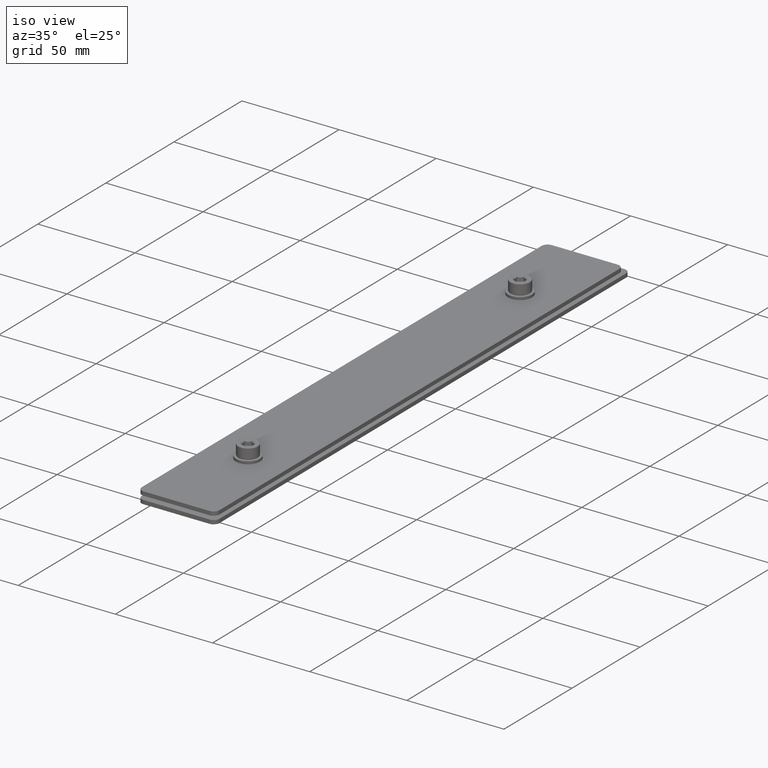
[diagram: clean part render]
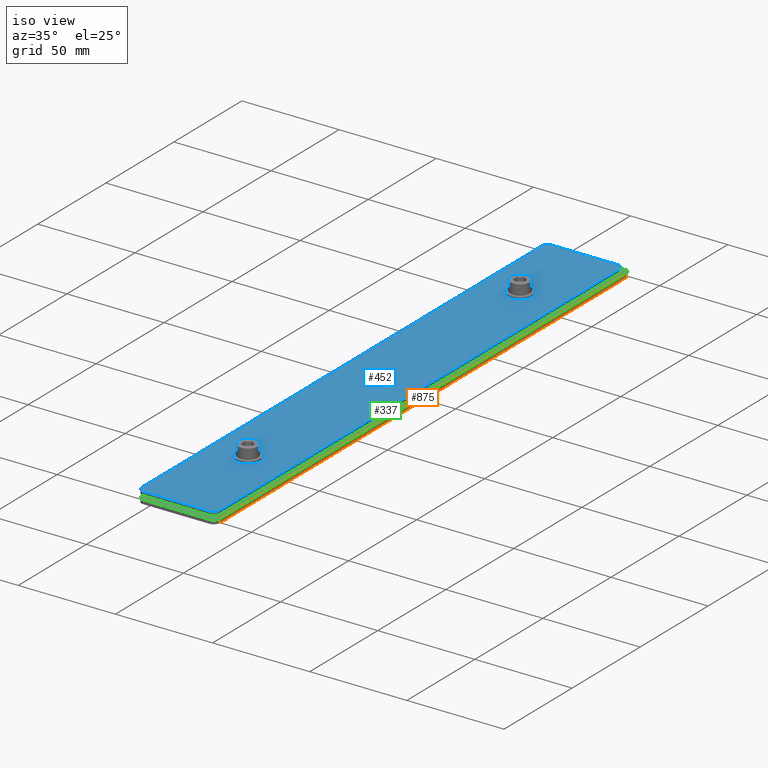
[diagram: same view with three faces highlighted in distinct colors, each labeled with its STEP entity id]
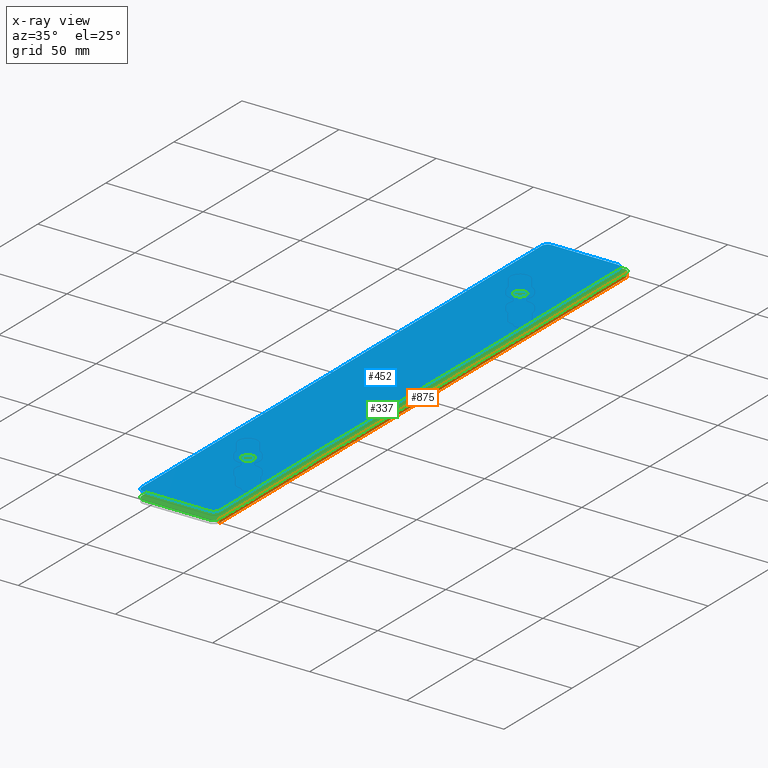
[diagram: x-ray of the same camera — body ghosted, the three highlighted faces saturated]
A machine part, iso view with three faces highlighted in distinct colors.
The next image is the same camera in x-ray (body ghosted, the three faces saturated) — at least one of them is partly hidden behind the body in this view.
Their STEP definitions:

[orange] entity #875 — the highlighted planar face has unit normal (1, 0, -0).
#132 = VERTEX_POINT ( 'NONE', #303 ) ;
#174 = LINE ( 'NONE', #3687, #2243 ) ;
#214 = DIRECTION ( 'NONE',  ( 0.000000000000000000, -1.000000000000000000, 0.000000000000000000 ) ) ;
#215 = EDGE_CURVE ( 'NONE', #917, #132, #3167, .T. ) ;
#303 = CARTESIAN_POINT ( 'NONE',  ( -6.614153669204370090E-14, -123.4999999999999432, -8.673617379884035472E-16 ) ) ;
#314 = CARTESIAN_POINT ( 'NONE',  ( -6.625255899450621655E-14, 175.5000000000000000, -2.000000000000000888 ) ) ;
#484 = PLANE ( 'NONE',  #3347 ) ;
#599 = EDGE_CURVE ( 'NONE', #2683, #917, #174, .T. ) ;
#724 = DIRECTION ( 'NONE',  ( 5.551115123125782702E-17, 0.000000000000000000, 1.000000000000000000 ) ) ;
#875 = ADVANCED_FACE ( 'NONE', ( #2524 ), #484, .T. ) ;
#917 = VERTEX_POINT ( 'NONE', #2261 ) ;
#1253 = DIRECTION ( 'NONE',  ( 0.000000000000000000, -1.000000000000000000, 0.000000000000000000 ) ) ;
#1601 = ORIENTED_EDGE ( 'NONE', *, *, #1962, .T. ) ;
#1607 = CARTESIAN_POINT ( 'NONE',  ( -6.625255899450621655E-14, -123.4999999999998863, -2.000000000000000888 ) ) ;
#1624 = ORIENTED_EDGE ( 'NONE', *, *, #215, .F. ) ;
#1671 = DIRECTION ( 'NONE',  ( 5.551115123125782702E-17, 0.000000000000000000, 1.000000000000000000 ) ) ;
#1764 = ORIENTED_EDGE ( 'NONE', *, *, #3746, .T. ) ;
#1834 = VERTEX_POINT ( 'NONE', #3434 ) ;
#1925 = VECTOR ( 'NONE', #724, 1000.000000000000000 ) ;
#1962 = EDGE_CURVE ( 'NONE', #1834, #132, #3585, .T. ) ;
#2070 = LINE ( 'NONE', #3709, #2301 ) ;
#2243 = VECTOR ( 'NONE', #214, 1000.000000000000000 ) ;
#2261 = CARTESIAN_POINT ( 'NONE',  ( -6.625255899450621655E-14, -123.4999999999999432, -2.000000000000000888 ) ) ;
#2301 = VECTOR ( 'NONE', #3762, 1000.000000000000000 ) ;
#2314 = ORIENTED_EDGE ( 'NONE', *, *, #599, .F. ) ;
#2372 = VECTOR ( 'NONE', #1253, 1000.000000000000000 ) ;
#2377 = CARTESIAN_POINT ( 'NONE',  ( -6.614153669204370090E-14, 178.4000000000000057, -8.673617379884035472E-16 ) ) ;
#2383 = EDGE_LOOP ( 'NONE', ( #1601, #1624, #2314, #1764 ) ) ;
#2524 = FACE_OUTER_BOUND ( 'NONE', #2383, .T. ) ;
#2683 = VERTEX_POINT ( 'NONE', #314 ) ;
#2810 = DIRECTION ( 'NONE',  ( 1.000000000000000000, 0.000000000000000000, -5.551115123125782702E-17 ) ) ;
#3167 = LINE ( 'NONE', #1607, #1925 ) ;
#3347 = AXIS2_PLACEMENT_3D ( 'NONE', #3414, #2810, #1671 ) ;
#3414 = CARTESIAN_POINT ( 'NONE',  ( -6.625255899450621655E-14, 178.4000000000000057, -2.000000000000000888 ) ) ;
#3434 = CARTESIAN_POINT ( 'NONE',  ( -6.614153669204370090E-14, 175.5000000000000000, -8.673617379884035472E-16 ) ) ;
#3585 = LINE ( 'NONE', #2377, #2372 ) ;
#3687 = CARTESIAN_POINT ( 'NONE',  ( -6.625255899450621655E-14, 178.4000000000000057, -2.000000000000000888 ) ) ;
#3709 = CARTESIAN_POINT ( 'NONE',  ( -6.625255899450621655E-14, 175.5000000000000284, -2.000000000000000888 ) ) ;
#3746 = EDGE_CURVE ( 'NONE', #2683, #1834, #2070, .T. ) ;
#3762 = DIRECTION ( 'NONE',  ( 5.551115123125782702E-17, 0.000000000000000000, 1.000000000000000000 ) ) ;

[blue] entity #452 — the highlighted planar face has unit normal (-0, 0, -1).
#6 = LINE ( 'NONE', #1718, #2482 ) ;
#9 = EDGE_CURVE ( 'NONE', #1392, #1392, #575, .T. ) ;
#26 = CIRCLE ( 'NONE', #2185, 3.000000000000000000 ) ;
#54 = CARTESIAN_POINT ( 'NONE',  ( -40.00000000000000000, -123.5000000000000000, 4.000000000000000000 ) ) ;
#87 = FACE_BOUND ( 'NONE', #3511, .T. ) ;
#118 = VERTEX_POINT ( 'NONE', #3266 ) ;
#143 = EDGE_LOOP ( 'NONE', ( #2514 ) ) ;
#146 = CARTESIAN_POINT ( 'NONE',  ( -2.999999999999967581, 173.5000000000000000, 3.999999999999999112 ) ) ;
#154 = VERTEX_POINT ( 'NONE', #54 ) ;
#196 = CARTESIAN_POINT ( 'NONE',  ( -23.30000000000000071, -74.00000000000001421, 3.999999999999999112 ) ) ;
#207 = DIRECTION ( 'NONE',  ( -3.813944420627395867E-17, 1.379055869979733316E-18, -1.000000000000000000 ) ) ;
#243 = VERTEX_POINT ( 'NONE', #146 ) ;
#274 = CARTESIAN_POINT ( 'NONE',  ( 3.215882421470084170E-14, 170.4999999999999716, 3.999999999999999112 ) ) ;
#317 = VERTEX_POINT ( 'NONE', #1486 ) ;
#332 = CIRCLE ( 'NONE', #2247, 3.300000000000000711 ) ;
#427 = FACE_OUTER_BOUND ( 'NONE', #3199, .T. ) ;
#452 = ADVANCED_FACE ( 'NONE', ( #87, #2190, #427 ), #1241, .F. ) ;
#514 = AXIS2_PLACEMENT_3D ( 'NONE', #2152, #1856, #2419 ) ;
#517 = CIRCLE ( 'NONE', #950, 3.000000000000000000 ) ;
#521 = ORIENTED_EDGE ( 'NONE', *, *, #2590, .F. ) ;
#530 = EDGE_CURVE ( 'NONE', #317, #1105, #3713, .T. ) ;
#575 = CIRCLE ( 'NONE', #2420, 3.300000000000000711 ) ;
#578 = CARTESIAN_POINT ( 'NONE',  ( 3.252606517456513302E-14, 173.4000000000000057, 3.999999999999999112 ) ) ;
#582 = VECTOR ( 'NONE', #2462, 1000.000000000000000 ) ;
#680 = DIRECTION ( 'NONE',  ( -3.813944420627395867E-17, 1.379055869979733316E-18, -1.000000000000000000 ) ) ;
#697 = CARTESIAN_POINT ( 'NONE',  ( -2.999999999999968026, 170.4999999999999716, 3.999999999999999112 ) ) ;
#701 = CIRCLE ( 'NONE', #1369, 3.000000000000002665 ) ;
#831 = EDGE_CURVE ( 'NONE', #243, #2599, #517, .T. ) ;
#927 = EDGE_CURVE ( 'NONE', #118, #3646, #26, .T. ) ;
#929 = EDGE_CURVE ( 'NONE', #1218, #1218, #332, .T. ) ;
#931 = CARTESIAN_POINT ( 'NONE',  ( -37.00000000000000000, -123.5000000000000000, 4.000000000000000000 ) ) ;
#950 = AXIS2_PLACEMENT_3D ( 'NONE', #697, #680, #1563 ) ;
#993 = ORIENTED_EDGE ( 'NONE', *, *, #9, .T. ) ;
#1042 = DIRECTION ( 'NONE',  ( -3.813944420627395867E-17, 1.379055869979733316E-18, -1.000000000000000000 ) ) ;
#1105 = VERTEX_POINT ( 'NONE', #1401 ) ;
#1164 = DIRECTION ( 'NONE',  ( 1.000000000000000000, -1.266348137463069179E-16, -3.813944420627395867E-17 ) ) ;
#1218 = VERTEX_POINT ( 'NONE', #3573 ) ;
#1241 = PLANE ( 'NONE',  #514 ) ;
#1266 = CARTESIAN_POINT ( 'NONE',  ( -5.451715467952313707E-15, -126.5000000000000000, 3.999999999999999112 ) ) ;
#1345 = CARTESIAN_POINT ( 'NONE',  ( -20.00000000000001066, 126.0000000000000000, 4.000000000000000000 ) ) ;
#1369 = AXIS2_PLACEMENT_3D ( 'NONE', #931, #2132, #1508 ) ;
#1392 = VERTEX_POINT ( 'NONE', #196 ) ;
#1401 = CARTESIAN_POINT ( 'NONE',  ( -36.99999999999996447, 173.5000000000000284, 4.000000000000000888 ) ) ;
#1429 = VECTOR ( 'NONE', #2670, 1000.000000000000000 ) ;
#1484 = LINE ( 'NONE', #1266, #3597 ) ;
#1486 = CARTESIAN_POINT ( 'NONE',  ( -39.99999999999996447, 170.5000000000000000, 4.000000000000000888 ) ) ;
#1508 = DIRECTION ( 'NONE',  ( -1.000000000000000000, 0.000000000000000000, 0.000000000000000000 ) ) ;
#1529 = DIRECTION ( 'NONE',  ( -3.813944420627395867E-17, 1.379055869979733316E-18, -1.000000000000000000 ) ) ;
#1563 = DIRECTION ( 'NONE',  ( -1.000000000000000000, 0.000000000000000000, 0.000000000000000000 ) ) ;
#1599 = CARTESIAN_POINT ( 'NONE',  ( -36.99999999999996447, 170.5000000000000000, 4.000000000000000888 ) ) ;
#1636 = DIRECTION ( 'NONE',  ( -3.813944420627395867E-17, 1.379055869979733316E-18, -1.000000000000000000 ) ) ;
#1664 = ORIENTED_EDGE ( 'NONE', *, *, #2686, .F. ) ;
#1718 = CARTESIAN_POINT ( 'NONE',  ( 3.253872865593976245E-14, 173.5000000000000000, 3.999999999999999112 ) ) ;
#1733 = CARTESIAN_POINT ( 'NONE',  ( -37.00000000000000000, -126.5000000000000000, 4.000000000000000000 ) ) ;
#1856 = DIRECTION ( 'NONE',  ( -3.813944420627395867E-17, 1.379055869979733316E-18, -1.000000000000000000 ) ) ;
#1995 = ORIENTED_EDGE ( 'NONE', *, *, #2365, .F. ) ;
#2099 = LINE ( 'NONE', #578, #1429 ) ;
#2132 = DIRECTION ( 'NONE',  ( -3.813944420627395867E-17, 1.379055869979733316E-18, -1.000000000000000000 ) ) ;
#2152 = CARTESIAN_POINT ( 'NONE',  ( 3.252606517456513302E-14, 173.4000000000000057, 3.999999999999999112 ) ) ;
#2185 = AXIS2_PLACEMENT_3D ( 'NONE', #3682, #1636, #3433 ) ;
#2190 = FACE_BOUND ( 'NONE', #143, .T. ) ;
#2247 = AXIS2_PLACEMENT_3D ( 'NONE', #1345, #1042, #2560 ) ;
#2363 = AXIS2_PLACEMENT_3D ( 'NONE', #1599, #1529, #2444 ) ;
#2365 = EDGE_CURVE ( 'NONE', #2599, #118, #2099, .T. ) ;
#2419 = DIRECTION ( 'NONE',  ( 1.000000000000000000, -1.266348137463069179E-16, -3.813944420627395867E-17 ) ) ;
#2420 = AXIS2_PLACEMENT_3D ( 'NONE', #2843, #207, #2559 ) ;
#2444 = DIRECTION ( 'NONE',  ( -1.000000000000000000, 0.000000000000000000, 0.000000000000000000 ) ) ;
#2462 = DIRECTION ( 'NONE',  ( 1.266348137463069179E-16, 1.000000000000000000, 1.379055869979728501E-18 ) ) ;
#2482 = VECTOR ( 'NONE', #1164, 1000.000000000000000 ) ;
#2498 = CARTESIAN_POINT ( 'NONE',  ( -39.99999999999996447, 173.4000000000000057, 4.000000000000000888 ) ) ;
#2514 = ORIENTED_EDGE ( 'NONE', *, *, #929, .T. ) ;
#2547 = ORIENTED_EDGE ( 'NONE', *, *, #2736, .F. ) ;
#2559 = DIRECTION ( 'NONE',  ( -1.000000000000000000, 0.000000000000000000, 0.000000000000000000 ) ) ;
#2560 = DIRECTION ( 'NONE',  ( -1.000000000000000000, 0.000000000000000000, 0.000000000000000000 ) ) ;
#2590 = EDGE_CURVE ( 'NONE', #1105, #243, #6, .T. ) ;
#2599 = VERTEX_POINT ( 'NONE', #274 ) ;
#2639 = ORIENTED_EDGE ( 'NONE', *, *, #831, .F. ) ;
#2670 = DIRECTION ( 'NONE',  ( -1.266348137463069179E-16, -1.000000000000000000, -1.379055869979728501E-18 ) ) ;
#2686 = EDGE_CURVE ( 'NONE', #3009, #154, #701, .T. ) ;
#2736 = EDGE_CURVE ( 'NONE', #3646, #3009, #1484, .T. ) ;
#2799 = LINE ( 'NONE', #2498, #582 ) ;
#2843 = CARTESIAN_POINT ( 'NONE',  ( -20.00000000000000000, -74.00000000000001421, 3.999999999999999112 ) ) ;
#3004 = ORIENTED_EDGE ( 'NONE', *, *, #3595, .F. ) ;
#3009 = VERTEX_POINT ( 'NONE', #1733 ) ;
#3032 = CARTESIAN_POINT ( 'NONE',  ( -3.000000000000005773, -126.5000000000000000, 3.999999999999999112 ) ) ;
#3199 = EDGE_LOOP ( 'NONE', ( #3697, #3004, #1664, #2547, #3342, #1995, #2639, #521 ) ) ;
#3266 = CARTESIAN_POINT ( 'NONE',  ( -5.071811026713391375E-15, -123.5000000000000000, 3.999999999999999112 ) ) ;
#3342 = ORIENTED_EDGE ( 'NONE', *, *, #927, .F. ) ;
#3433 = DIRECTION ( 'NONE',  ( -1.000000000000000000, 0.000000000000000000, 0.000000000000000000 ) ) ;
#3511 = EDGE_LOOP ( 'NONE', ( #993 ) ) ;
#3573 = CARTESIAN_POINT ( 'NONE',  ( -23.30000000000001137, 126.0000000000000000, 4.000000000000000000 ) ) ;
#3595 = EDGE_CURVE ( 'NONE', #154, #317, #2799, .T. ) ;
#3597 = VECTOR ( 'NONE', #3615, 1000.000000000000000 ) ;
#3615 = DIRECTION ( 'NONE',  ( -1.000000000000000000, 1.266348137463069179E-16, 3.813944420627395867E-17 ) ) ;
#3646 = VERTEX_POINT ( 'NONE', #3032 ) ;
#3682 = CARTESIAN_POINT ( 'NONE',  ( -3.000000000000005329, -123.5000000000000000, 3.999999999999999112 ) ) ;
#3697 = ORIENTED_EDGE ( 'NONE', *, *, #530, .F. ) ;
#3713 = CIRCLE ( 'NONE', #2363, 3.000000000000002665 ) ;

[green] entity #337 — the highlighted planar face has unit normal (-0, 0, -1).
#30 = FACE_OUTER_BOUND ( 'NONE', #2711, .T. ) ;
#47 = DIRECTION ( 'NONE',  ( 1.000000000000000000, -0.000000000000000000, -5.551115123125782702E-17 ) ) ;
#132 = VERTEX_POINT ( 'NONE', #303 ) ;
#218 = ORIENTED_EDGE ( 'NONE', *, *, #1540, .F. ) ;
#283 = VERTEX_POINT ( 'NONE', #3349 ) ;
#296 = ORIENTED_EDGE ( 'NONE', *, *, #3047, .T. ) ;
#303 = CARTESIAN_POINT ( 'NONE',  ( -6.614153669204370090E-14, -123.4999999999999432, -8.673617379884035472E-16 ) ) ;
#331 = CIRCLE ( 'NONE', #3536, 2.999999999999999556 ) ;
#337 = ADVANCED_FACE ( 'NONE', ( #30, #1469, #2971 ), #2661, .F. ) ;
#381 = DIRECTION ( 'NONE',  ( -5.551115123125782702E-17, -0.000000000000000000, -1.000000000000000000 ) ) ;
#414 = CARTESIAN_POINT ( 'NONE',  ( -3.000000000000066613, -123.5000000000000000, -8.673617379884035472E-16 ) ) ;
#454 = VECTOR ( 'NONE', #870, 1000.000000000000000 ) ;
#458 = EDGE_CURVE ( 'NONE', #3744, #1834, #331, .T. ) ;
#567 = LINE ( 'NONE', #812, #1566 ) ;
#569 = ORIENTED_EDGE ( 'NONE', *, *, #3728, .F. ) ;
#570 = CARTESIAN_POINT ( 'NONE',  ( -6.614153669204370090E-14, 178.4000000000000057, -8.673617379884035472E-16 ) ) ;
#618 = DIRECTION ( 'NONE',  ( -1.000000000000000000, 0.000000000000000000, 5.551115123125782702E-17 ) ) ;
#678 = VERTEX_POINT ( 'NONE', #1405 ) ;
#780 = CARTESIAN_POINT ( 'NONE',  ( -3.000000000000066613, 178.5000000000000000, -8.673617379884035472E-16 ) ) ;
#812 = CARTESIAN_POINT ( 'NONE',  ( -6.614153669204370090E-14, -126.5000000000000000, -8.673617379884035472E-16 ) ) ;
#820 = AXIS2_PLACEMENT_3D ( 'NONE', #414, #1300, #2477 ) ;
#856 = DIRECTION ( 'NONE',  ( -5.551115123125782702E-17, 0.000000000000000000, -1.000000000000000000 ) ) ;
#865 = DIRECTION ( 'NONE',  ( -5.551115123125782702E-17, -0.000000000000000000, -1.000000000000000000 ) ) ;
#870 = DIRECTION ( 'NONE',  ( 1.000000000000000000, -0.000000000000000000, -5.551115123125782702E-17 ) ) ;
#925 = ORIENTED_EDGE ( 'NONE', *, *, #458, .F. ) ;
#933 = DIRECTION ( 'NONE',  ( -5.551115123125782702E-17, -0.000000000000000000, -1.000000000000000000 ) ) ;
#945 = DIRECTION ( 'NONE',  ( -1.000000000000000000, 0.000000000000000000, 5.551115123125782702E-17 ) ) ;
#1040 = ORIENTED_EDGE ( 'NONE', *, *, #1962, .F. ) ;
#1047 = ORIENTED_EDGE ( 'NONE', *, *, #3274, .F. ) ;
#1084 = ORIENTED_EDGE ( 'NONE', *, *, #1963, .T. ) ;
#1111 = EDGE_CURVE ( 'NONE', #283, #3076, #2666, .T. ) ;
#1199 = AXIS2_PLACEMENT_3D ( 'NONE', #2409, #1541, #618 ) ;
#1214 = DIRECTION ( 'NONE',  ( -1.000000000000000000, 0.000000000000000000, 5.551115123125782702E-17 ) ) ;
#1253 = DIRECTION ( 'NONE',  ( 0.000000000000000000, -1.000000000000000000, 0.000000000000000000 ) ) ;
#1281 = EDGE_CURVE ( 'NONE', #2459, #283, #3073, .T. ) ;
#1300 = DIRECTION ( 'NONE',  ( -5.551115123125782702E-17, -0.000000000000000000, -1.000000000000000000 ) ) ;
#1360 = VERTEX_POINT ( 'NONE', #3077 ) ;
#1377 = CIRCLE ( 'NONE', #1199, 3.300000000000000711 ) ;
#1405 = CARTESIAN_POINT ( 'NONE',  ( -3.000000000000066613, -126.5000000000000000, -8.673617379884035472E-16 ) ) ;
#1469 = FACE_BOUND ( 'NONE', #2360, .T. ) ;
#1494 = CIRCLE ( 'NONE', #820, 2.999999999999999556 ) ;
#1515 = EDGE_CURVE ( 'NONE', #3076, #3744, #1760, .T. ) ;
#1540 = EDGE_CURVE ( 'NONE', #678, #2140, #567, .T. ) ;
#1541 = DIRECTION ( 'NONE',  ( -5.551115123125782702E-17, -0.000000000000000000, -1.000000000000000000 ) ) ;
#1565 = AXIS2_PLACEMENT_3D ( 'NONE', #2946, #381, #945 ) ;
#1566 = VECTOR ( 'NONE', #1993, 1000.000000000000000 ) ;
#1760 = LINE ( 'NONE', #3456, #454 ) ;
#1782 = ORIENTED_EDGE ( 'NONE', *, *, #1515, .F. ) ;
#1787 = CARTESIAN_POINT ( 'NONE',  ( -37.00000000000007105, -123.5000000000000000, 8.673617379884035472E-16 ) ) ;
#1833 = CARTESIAN_POINT ( 'NONE',  ( -37.00000000000007105, 178.5000000000000000, 8.673617379884035472E-16 ) ) ;
#1834 = VERTEX_POINT ( 'NONE', #3434 ) ;
#1938 = CARTESIAN_POINT ( 'NONE',  ( -40.00000000000007105, -123.5000000000000000, 1.734723475976807094E-15 ) ) ;
#1953 = EDGE_LOOP ( 'NONE', ( #296 ) ) ;
#1962 = EDGE_CURVE ( 'NONE', #1834, #132, #3585, .T. ) ;
#1963 = EDGE_CURVE ( 'NONE', #3271, #3271, #1377, .T. ) ;
#1993 = DIRECTION ( 'NONE',  ( -1.000000000000000000, 0.000000000000000000, 5.551115123125782702E-17 ) ) ;
#2140 = VERTEX_POINT ( 'NONE', #3020 ) ;
#2234 = DIRECTION ( 'NONE',  ( -1.000000000000000000, 0.000000000000000000, 5.551115123125782702E-17 ) ) ;
#2360 = EDGE_LOOP ( 'NONE', ( #1084 ) ) ;
#2372 = VECTOR ( 'NONE', #1253, 1000.000000000000000 ) ;
#2377 = CARTESIAN_POINT ( 'NONE',  ( -6.614153669204370090E-14, 178.4000000000000057, -8.673617379884035472E-16 ) ) ;
#2409 = CARTESIAN_POINT ( 'NONE',  ( -20.00000000000001421, 126.0000000000000000, 0.000000000000000000 ) ) ;
#2459 = VERTEX_POINT ( 'NONE', #1938 ) ;
#2477 = DIRECTION ( 'NONE',  ( -1.000000000000000000, 0.000000000000000000, 5.551115123125782086E-17 ) ) ;
#2500 = DIRECTION ( 'NONE',  ( -5.551115123125782702E-17, -0.000000000000000000, -1.000000000000000000 ) ) ;
#2502 = DIRECTION ( 'NONE',  ( -0.000000000000000000, 1.000000000000000000, -0.000000000000000000 ) ) ;
#2661 = PLANE ( 'NONE',  #3279 ) ;
#2666 = CIRCLE ( 'NONE', #3284, 3.000000000000002665 ) ;
#2711 = EDGE_LOOP ( 'NONE', ( #3195, #3605, #1047, #218, #569, #1040, #925, #1782 ) ) ;
#2723 = AXIS2_PLACEMENT_3D ( 'NONE', #1787, #2500, #2234 ) ;
#2821 = CARTESIAN_POINT ( 'NONE',  ( -40.00000000000007105, 178.4000000000000057, 1.734723475976807094E-15 ) ) ;
#2946 = CARTESIAN_POINT ( 'NONE',  ( -20.00000000000001421, -74.00000000000001421, 0.000000000000000000 ) ) ;
#2965 = CARTESIAN_POINT ( 'NONE',  ( -23.30000000000001492, 126.0000000000000000, 1.831867990631508686E-16 ) ) ;
#2971 = FACE_BOUND ( 'NONE', #1953, .T. ) ;
#3020 = CARTESIAN_POINT ( 'NONE',  ( -37.00000000000007105, -126.5000000000000000, 8.673617379884035472E-16 ) ) ;
#3047 = EDGE_CURVE ( 'NONE', #1360, #1360, #3715, .T. ) ;
#3050 = DIRECTION ( 'NONE',  ( -1.000000000000000000, 0.000000000000000000, 5.551115123125782086E-17 ) ) ;
#3073 = LINE ( 'NONE', #2821, #3161 ) ;
#3076 = VERTEX_POINT ( 'NONE', #1833 ) ;
#3077 = CARTESIAN_POINT ( 'NONE',  ( -23.30000000000001492, -74.00000000000001421, 1.831867990631508686E-16 ) ) ;
#3161 = VECTOR ( 'NONE', #2502, 1000.000000000000000 ) ;
#3195 = ORIENTED_EDGE ( 'NONE', *, *, #1111, .F. ) ;
#3271 = VERTEX_POINT ( 'NONE', #2965 ) ;
#3274 = EDGE_CURVE ( 'NONE', #2140, #2459, #3652, .T. ) ;
#3279 = AXIS2_PLACEMENT_3D ( 'NONE', #570, #856, #47 ) ;
#3284 = AXIS2_PLACEMENT_3D ( 'NONE', #3506, #865, #1214 ) ;
#3320 = CARTESIAN_POINT ( 'NONE',  ( -3.000000000000066613, 175.5000000000000000, -8.673617379884035472E-16 ) ) ;
#3349 = CARTESIAN_POINT ( 'NONE',  ( -40.00000000000007105, 175.5000000000000000, 1.734723475976807094E-15 ) ) ;
#3434 = CARTESIAN_POINT ( 'NONE',  ( -6.614153669204370090E-14, 175.5000000000000000, -8.673617379884035472E-16 ) ) ;
#3456 = CARTESIAN_POINT ( 'NONE',  ( -6.614153669204370090E-14, 178.5000000000000000, -8.673617379884035472E-16 ) ) ;
#3506 = CARTESIAN_POINT ( 'NONE',  ( -37.00000000000007105, 175.5000000000000000, 8.673617379884035472E-16 ) ) ;
#3536 = AXIS2_PLACEMENT_3D ( 'NONE', #3320, #933, #3050 ) ;
#3585 = LINE ( 'NONE', #2377, #2372 ) ;
#3605 = ORIENTED_EDGE ( 'NONE', *, *, #1281, .F. ) ;
#3652 = CIRCLE ( 'NONE', #2723, 3.000000000000002665 ) ;
#3715 = CIRCLE ( 'NONE', #1565, 3.300000000000000711 ) ;
#3728 = EDGE_CURVE ( 'NONE', #132, #678, #1494, .T. ) ;
#3744 = VERTEX_POINT ( 'NONE', #780 ) ;